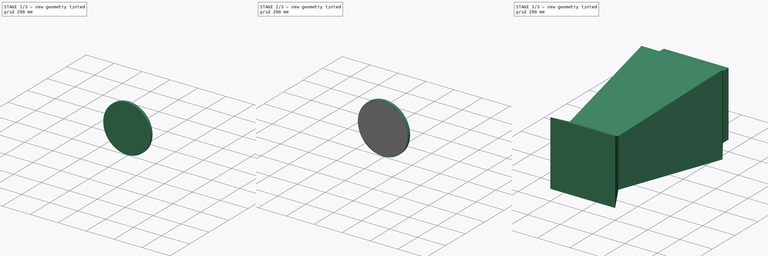
[diagram: build sequence overview — one tinted view per stage of 3, left to right]
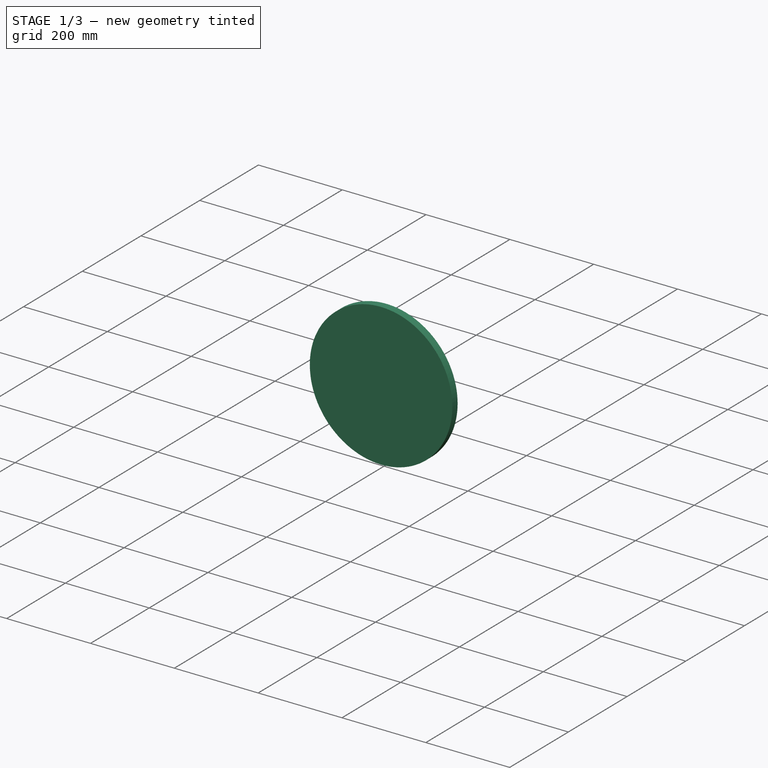
[diagram: stage 1 of 3 — iso view after this stage's code; geometry added in this stage tinted green]
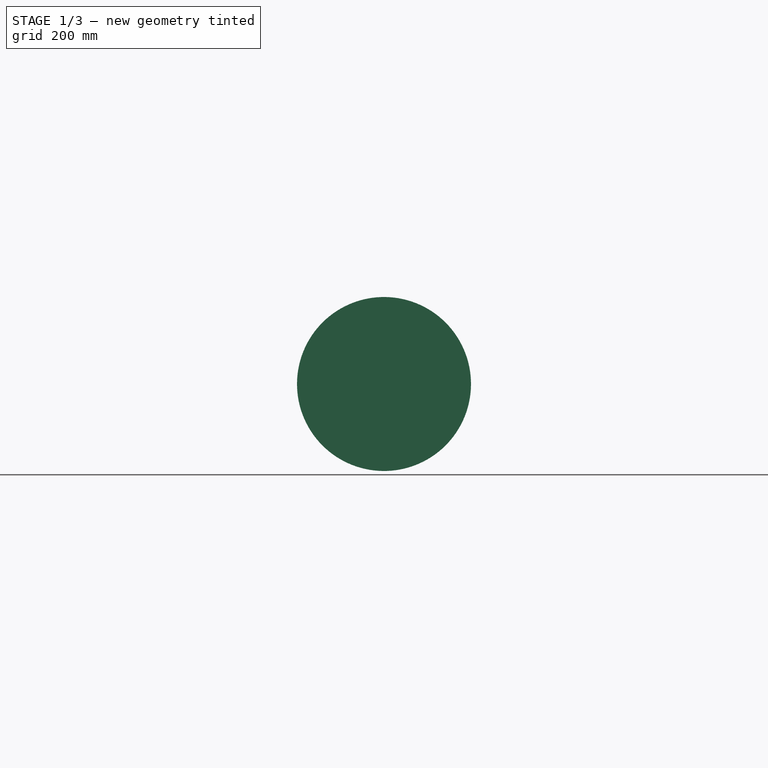
[diagram: stage 1 of 3 — front view after this stage's code; geometry added in this stage tinted green]
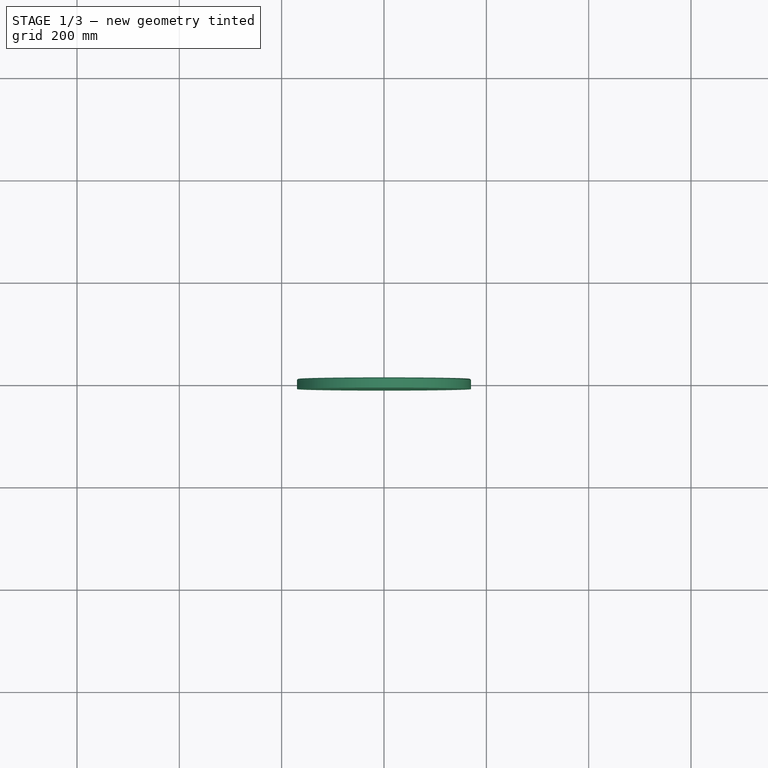
[diagram: stage 1 of 3 — top view after this stage's code; geometry added in this stage tinted green]
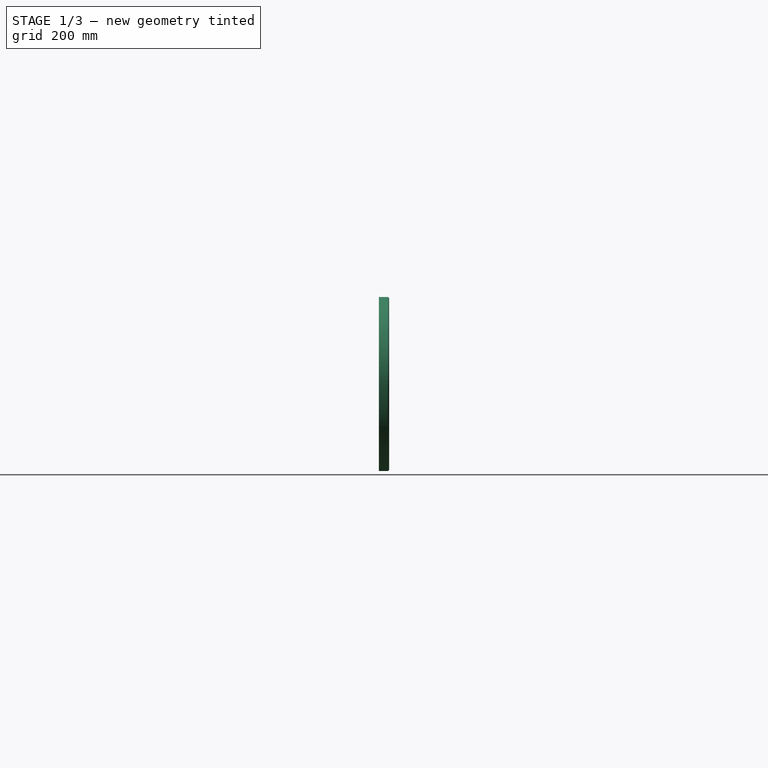
[diagram: stage 1 of 3 — right view after this stage's code; geometry added in this stage tinted green]
FCSTD DOCUMENT  (FreeCAD 0.18.3R)
Label: Stand
License: All rights reserved
LicenseURL: http://en.wikipedia.org/wiki/All_rights_reserved
objects: Sketcher::SketchObject×5, Part::Cylinder×2, PartDesign::AdditiveLoft×1, PartDesign::Body×1, Part::Cut×1, Part::Fillet×1
note: 12 computed .brp shape members not serialized (recipe doc carries the construction recipe); baked Part::Feature solids carry a one-line shape summary decoded from their .brp

FEATURE [Part::Cylinder] Cylinder001
  Angle = 360
  AttacherType = Attacher::AttachEngine3D
  Height = 20
  Placement = pos=(0,1010,0) rot=(1,0,0;1.5708rad)
  Radius = 170
FEATURE [Part::Fillet] Fillet
  Base = -> Cylinder001
  Edges = 1 edges r=3: [Edge3]
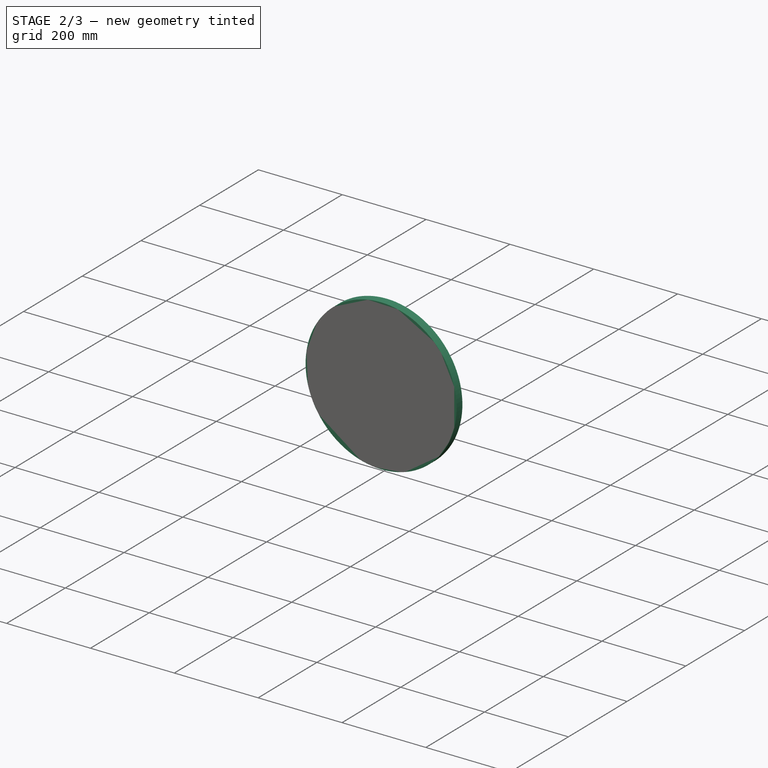
[diagram: stage 2 of 3 — iso view after this stage's code; geometry added in this stage tinted green]
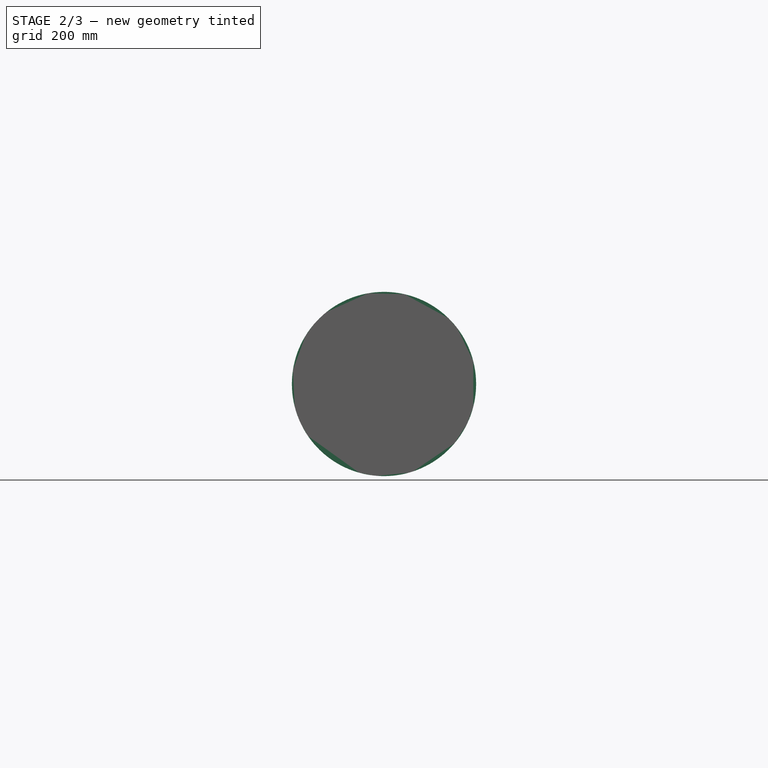
[diagram: stage 2 of 3 — front view after this stage's code; geometry added in this stage tinted green]
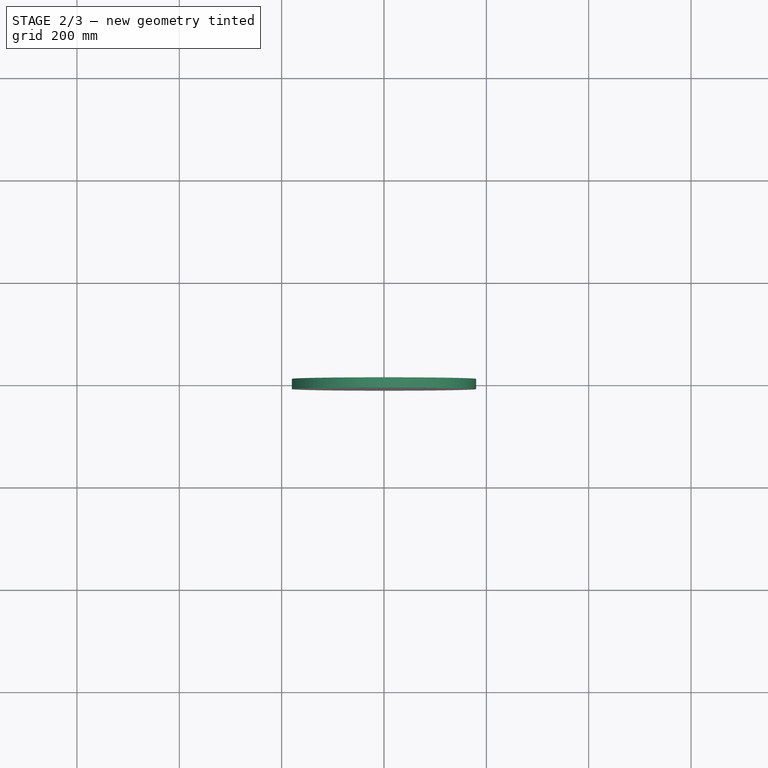
[diagram: stage 2 of 3 — top view after this stage's code; geometry added in this stage tinted green]
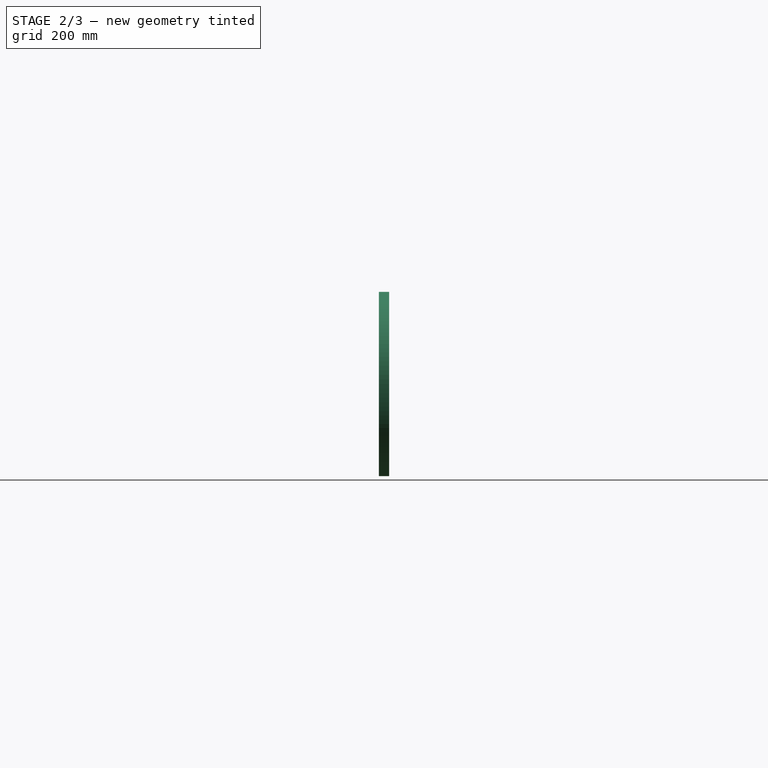
[diagram: stage 2 of 3 — right view after this stage's code; geometry added in this stage tinted green]
FEATURE [PartDesign::Body] Body
  Group = -> [Sketch,Sketch001,Sketch002,Sketch003,Sketch004,AdditiveLoft]
  Origin = -> Origin
  Tip = -> AdditiveLoft
FEATURE [Part::Cylinder] Cylinder
  Angle = 360
  AttacherType = Attacher::AttachEngine3D
  Height = 20
  Placement = pos=(0,1010,0) rot=(1,0,0;1.5708rad)
  Radius = 180
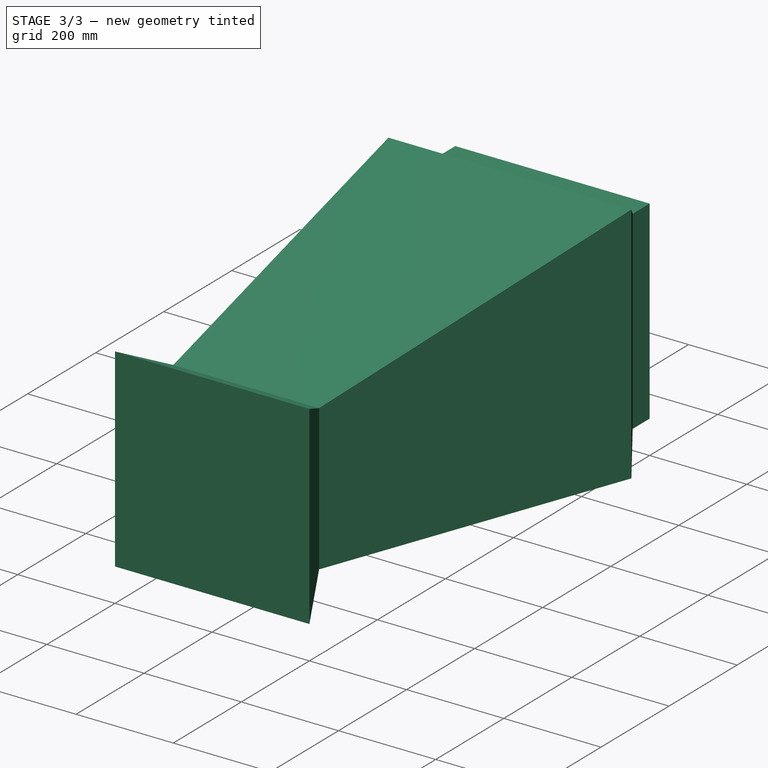
[diagram: stage 3 of 3 — iso view after this stage's code; geometry added in this stage tinted green]
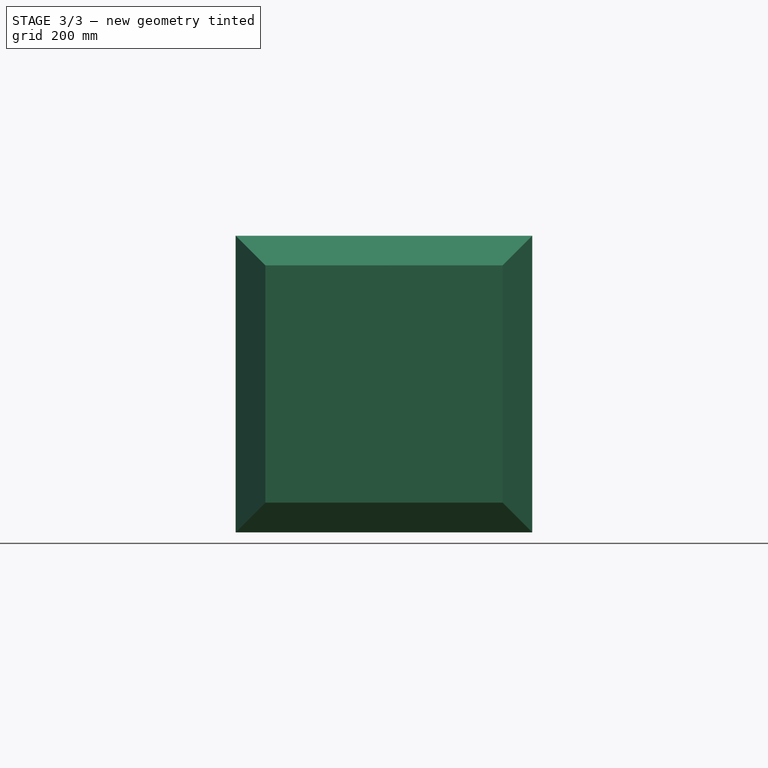
[diagram: stage 3 of 3 — front view after this stage's code; geometry added in this stage tinted green]
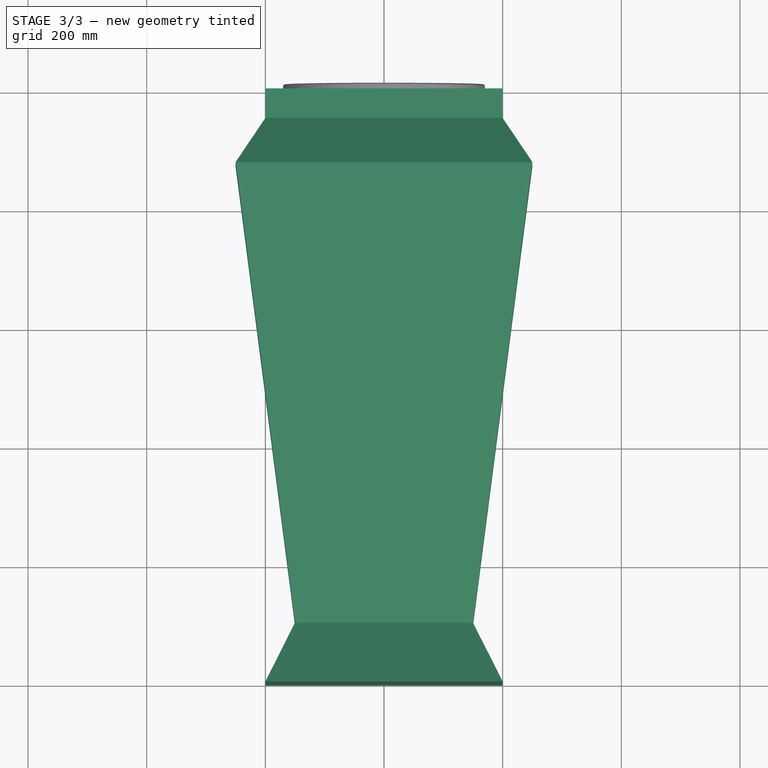
[diagram: stage 3 of 3 — top view after this stage's code; geometry added in this stage tinted green]
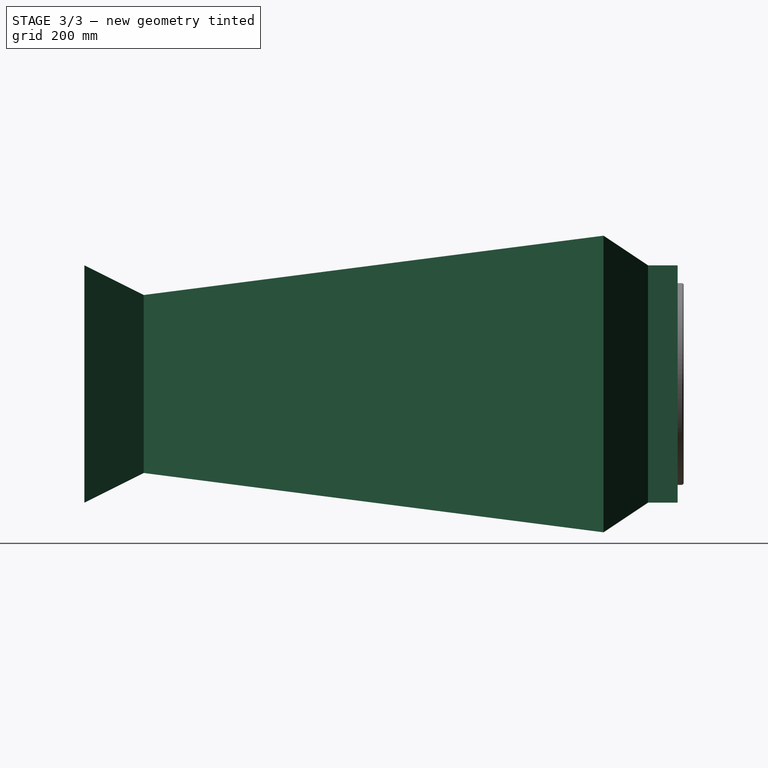
[diagram: stage 3 of 3 — right view after this stage's code; geometry added in this stage tinted green]
FEATURE [Sketcher::SketchObject] Sketch
  Placement = pos=(0,0,0) rot=(1,0,0;1.5708rad)
  sketch-geometry (4):
    g0: LineSegment StartX=-200 StartY=200 StartZ=0 EndX=200 EndY=200 EndZ=0
    g1: LineSegment StartX=200 StartY=200 StartZ=0 EndX=200 EndY=-200 EndZ=0
    g2: LineSegment StartX=200 StartY=-200 StartZ=0 EndX=-200 EndY=-200 EndZ=0
    g3: LineSegment StartX=-200 StartY=-200 StartZ=0 EndX=-200 EndY=200 EndZ=0
  constraints (11):
    c: Coincident(g0,g1)
    c: Coincident(g1,g2)
    c: Coincident(g2,g3)
    c: Coincident(g3,g0)
    c: Horizontal(g0)
    c: Horizontal(g2)
    c: Vertical(g1)
    c: Vertical(g3)
    c: Symmetric(g0,g1,g-1)
    c: DistanceX(g2,g2) = 400
    c: Equal(g2,g3)
FEATURE [Sketcher::SketchObject] Sketch001
  Placement = pos=(0,100,0) rot=(1,0,0;1.5708rad)
  sketch-geometry (4):
    g0: LineSegment StartX=-150 StartY=150 StartZ=0 EndX=150 EndY=150 EndZ=0
    g1: LineSegment StartX=150 StartY=150 StartZ=0 EndX=150 EndY=-150 EndZ=0
    g2: LineSegment StartX=150 StartY=-150 StartZ=0 EndX=-150 EndY=-150 EndZ=0
    g3: LineSegment StartX=-150 StartY=-150 StartZ=0 EndX=-150 EndY=150 EndZ=0
  constraints (11):
    c: Coincident(g0,g1)
    c: Coincident(g1,g2)
    c: Coincident(g2,g3)
    c: Coincident(g3,g0)
    c: Horizontal(g0)
    c: Horizontal(g2)
    c: Vertical(g1)
    c: Vertical(g3)
    c: Symmetric(g0,g1,g-1)
    c: DistanceX(g2,g2) = 300
    c: Equal(g2,g3)
FEATURE [Sketcher::SketchObject] Sketch002
  Placement = pos=(0,875,0) rot=(1,0,0;1.5708rad)
  sketch-geometry (4):
    g0: LineSegment StartX=-250 StartY=250 StartZ=0 EndX=250 EndY=250 EndZ=0
    g1: LineSegment StartX=250 StartY=250 StartZ=0 EndX=250 EndY=-250 EndZ=0
    g2: LineSegment StartX=250 StartY=-250 StartZ=0 EndX=-250 EndY=-250 EndZ=0
    g3: LineSegment StartX=-250 StartY=-250 StartZ=0 EndX=-250 EndY=250 EndZ=0
  constraints (11):
    c: Coincident(g0,g1)
    c: Coincident(g1,g2)
    c: Coincident(g2,g3)
    c: Coincident(g3,g0)
    c: Horizontal(g0)
    c: Horizontal(g2)
    c: Vertical(g1)
    c: Vertical(g3)
    c: Symmetric(g0,g1,g-1)
    c: DistanceX(g2,g2) = 500
    c: Equal(g2,g3)
FEATURE [Sketcher::SketchObject] Sketch003
  Placement = pos=(0,950,0) rot=(1,0,0;1.5708rad)
  sketch-geometry (4):
    g0: LineSegment StartX=-200 StartY=200 StartZ=0 EndX=200 EndY=200 EndZ=0
    g1: LineSegment StartX=200 StartY=200 StartZ=0 EndX=200 EndY=-200 EndZ=0
    g2: LineSegment StartX=200 StartY=-200 StartZ=0 EndX=-200 EndY=-200 EndZ=0
    g3: LineSegment StartX=-200 StartY=-200 StartZ=0 EndX=-200 EndY=200 EndZ=0
  constraints (11):
    c: Coincident(g0,g1)
    c: Coincident(g1,g2)
    c: Coincident(g2,g3)
    c: Coincident(g3,g0)
    c: Horizontal(g0)
    c: Horizontal(g2)
    c: Vertical(g1)
    c: Vertical(g3)
    c: Symmetric(g0,g1,g-1)
    c: DistanceX(g2,g2) = 400
    c: Equal(g2,g3)
FEATURE [Sketcher::SketchObject] Sketch004
  Placement = pos=(0,1000,0) rot=(1,0,0;1.5708rad)
  sketch-geometry (4):
    g0: LineSegment StartX=-200 StartY=200 StartZ=0 EndX=200 EndY=200 EndZ=0
    g1: LineSegment StartX=200 StartY=200 StartZ=0 EndX=200 EndY=-200 EndZ=0
    g2: LineSegment StartX=200 StartY=-200 StartZ=0 EndX=-200 EndY=-200 EndZ=0
    g3: LineSegment StartX=-200 StartY=-200 StartZ=0 EndX=-200 EndY=200 EndZ=0
  constraints (11):
    c: Coincident(g0,g1)
    c: Coincident(g1,g2)
    c: Coincident(g2,g3)
    c: Coincident(g3,g0)
    c: Horizontal(g0)
    c: Horizontal(g2)
    c: Vertical(g1)
    c: Vertical(g3)
    c: Symmetric(g0,g1,g-1)
    c: DistanceX(g2,g2) = 400
    c: Equal(g2,g3)
FEATURE [PartDesign::AdditiveLoft] AdditiveLoft
  Closed = true
  Placement = pos=(0,0,0) rot=(1,0,0;1.5708rad)
  Profile = -> Sketch
  Ruled = true
  Sections = -> [Sketch001,Sketch002,Sketch003,Sketch004]
FEATURE [Part::Cut] Cut
  Base = -> AdditiveLoft
  Tool = -> Cylinder
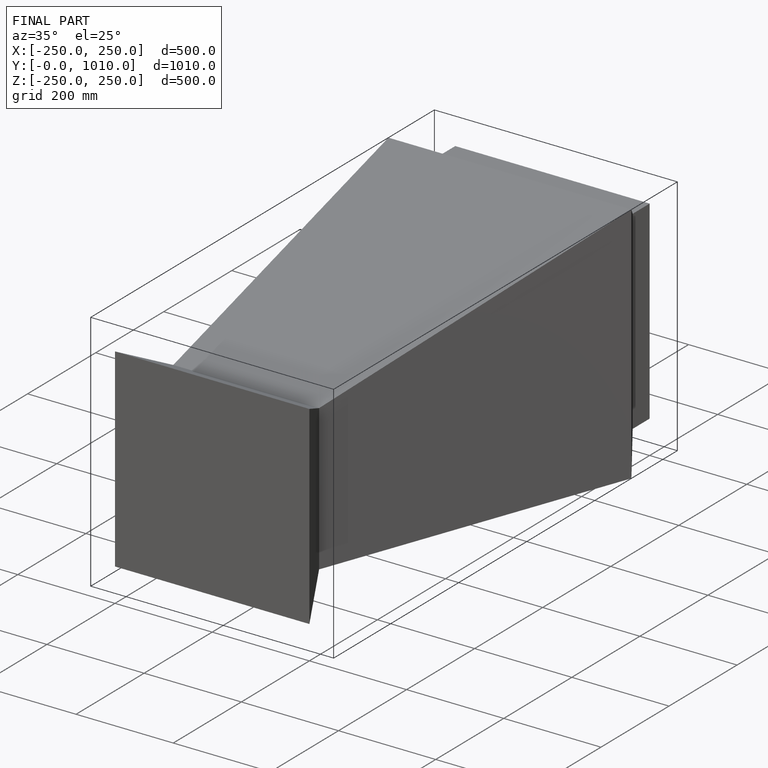
[diagram: finished part — iso view with bounding-box wireframe]
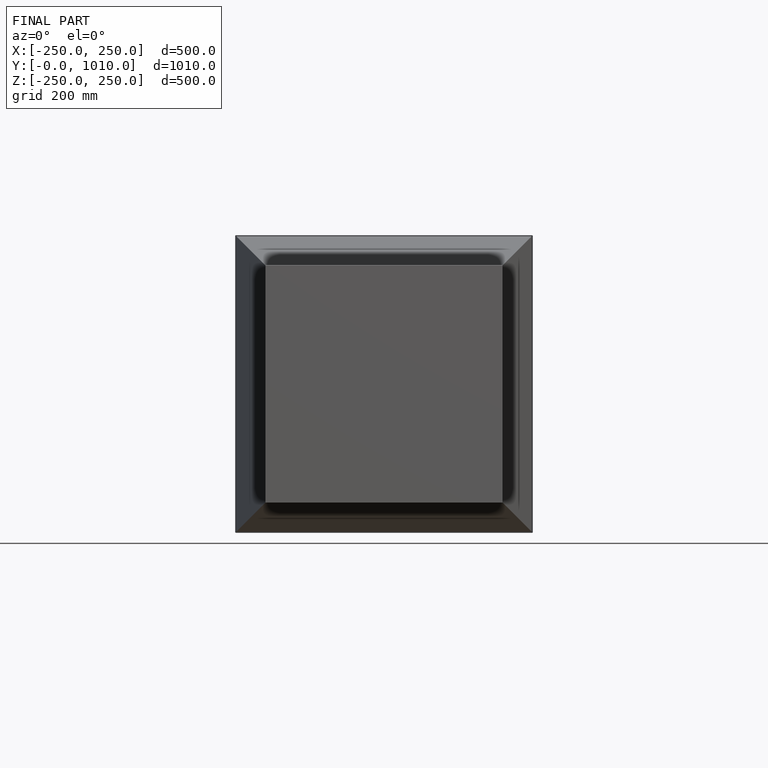
[diagram: finished part — front view with bounding-box wireframe]
